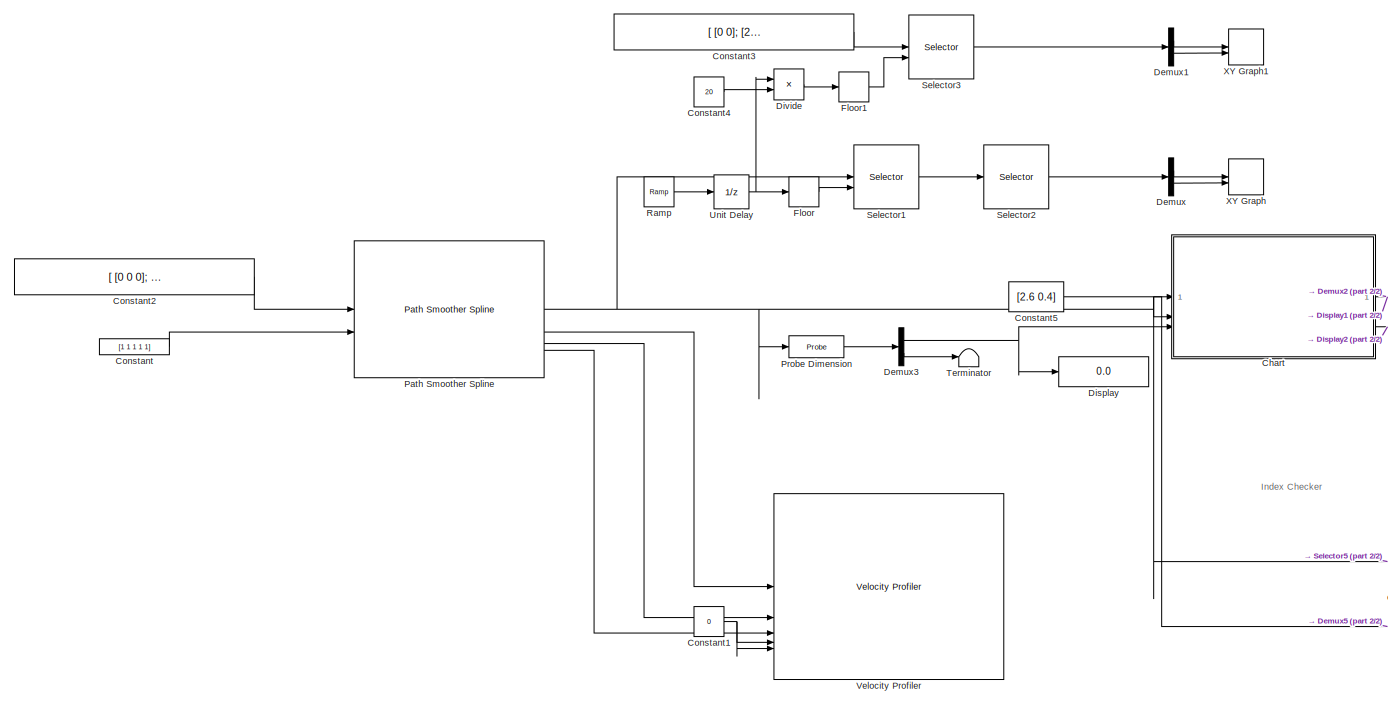
[diagram: root canvas - part 1/2, left side, full height]
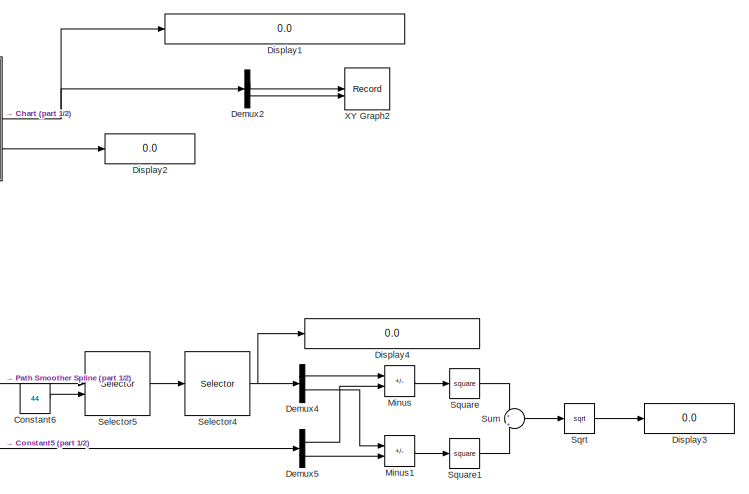
[diagram: root canvas - part 2/2, middle right region]
MODEL slx_e1f2869dee42
KIND model
CONFIG AbsTol = auto
CONFIG EnableMultiTasking = off
CONFIG FixedStep = .02
CONFIG MaxStep = auto
CONFIG MinStep = auto
CONFIG RelTol = 1e-3
CONFIG SampleTimeConstraint = Unconstrained
CONFIG SolverName = FixedStepDiscrete
CONFIG StartTime = 0.0
CONFIG StopTime = 100
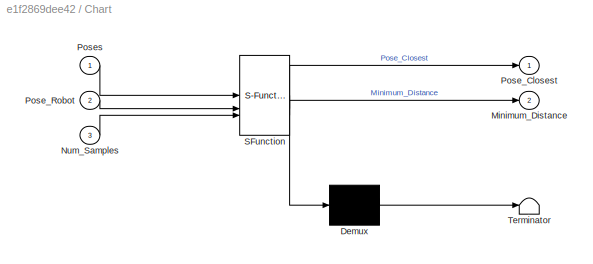
BLOCK [SubSystem] Chart
  ErrorFcn = Stateflow.Translate.translate
  PermitHierarchicalResolution = ExplicitOnly
  SFBlockType = Chart
  TreatAsAtomicUnit = on
BLOCK [Demux] Chart/ Demux 
  Outputs = 1
BLOCK [S-Function] Chart/ SFunction 
  EnableBusSupport = on
  FunctionName = sf_sfun
  PortCounts = [3 3]
  SFcnIsStateOwnerBlock = off
  SFunctionDeploymentMode = off
  Tag = Stateflow S-Function 3
BLOCK [Terminator] Chart/ Terminator 
BLOCK [Outport] Chart/Minimum_Distance
  Port = 2
BLOCK [Inport] Chart/Num_Samples
  Port = 3
BLOCK [Outport] Chart/Pose_Closest
BLOCK [Inport] Chart/Pose_Robot
  Port = 2
BLOCK [Inport] Chart/Poses
BLOCK [Constant] Constant
  Value = [1 1 1 1 1]
BLOCK [Constant] Constant1
  Value = 0
BLOCK [Constant] Constant2
  Value = [ [0 0 0]; [2 0 0]; [3 1 90]; [4 0 -90]; [3 -1 180] ]
BLOCK [Constant] Constant3
  Commented = on
  Value = [ [0 0]; [2 0]; [3 1]; [4 0]; [3 -1] ]
BLOCK [Constant] Constant4
  Commented = on
  Value = 20
BLOCK [Constant] Constant5
  Value = [2.6 0.4]
BLOCK [Constant] Constant6
  Commented = on
  Value = 44
BLOCK [Demux] Demux
  Outputs = 2
BLOCK [Demux] Demux1
  Commented = on
  Outputs = 2
BLOCK [Demux] Demux2
  Outputs = 2
BLOCK [Demux] Demux3
  Outputs = 2
BLOCK [Demux] Demux4
  Commented = on
  Outputs = 2
BLOCK [Demux] Demux5
  Commented = on
  Outputs = 2
BLOCK [Display] Display
  Decimation = 1
BLOCK [Display] Display1
  Decimation = 1
BLOCK [Display] Display2
  Decimation = 1
BLOCK [Display] Display3
  Commented = on
  Decimation = 1
BLOCK [Display] Display4
  Commented = on
  Decimation = 1
BLOCK [Product] Divide
  Commented = on
  Inputs = */
BLOCK [Rounding] Floor
BLOCK [Rounding] Floor1
  Commented = on
BLOCK [Sum] Minus
  Commented = on
  IconShape = rectangular
  Inputs = +-
BLOCK [Sum] Minus1
  Commented = on
  IconShape = rectangular
  Inputs = +-
BLOCK [Reference] Path Smoother Spline  REF=drivinglib/Path Smoother Spline
  SourceBlock = drivinglib/Path Smoother Spline
  SourceType = driving.internal.planning.PathSmootherSpline
BLOCK [Probe] Probe Dimension
  ProbeComplexSignal = off
  ProbeSampleTime = off
  ProbeSignalDimensions = on
  ProbeWidth = off
BLOCK [Reference] Ramp  REF=simulink/Sources/Ramp
  SourceBlock = simulink/Sources/Ramp
  SourceType = Ramp
BLOCK [Selector] Selector1
  IndexMode = Zero-based
  IndexOptions = Index vector (port),Select all
  Indices = [1 3],1
  InputPortWidth = 3
  NumberOfDimensions = 2
  OutputSizes = 1,1
BLOCK [Selector] Selector2
  IndexMode = Zero-based
  IndexOptions = Index vector (dialog)
  Indices = [0 1]
  InputPortWidth = 3
  OutputSizes = 1
BLOCK [Selector] Selector3
  Commented = on
  IndexMode = Zero-based
  IndexOptions = Index vector (port),Select all
  Indices = [1 3],1
  InputPortWidth = 3
  NumberOfDimensions = 2
  OutputSizes = 1,1
BLOCK [Selector] Selector4
  Commented = on
  IndexMode = Zero-based
  IndexOptions = Index vector (dialog)
  Indices = [0 1]
  InputPortWidth = 3
  OutputSizes = 1
BLOCK [Selector] Selector5
  Commented = on
  IndexMode = Zero-based
  IndexOptions = Index vector (port),Select all
  Indices = [1 3],1
  InputPortWidth = 3
  NumberOfDimensions = 2
  OutputSizes = 1,1
BLOCK [Sqrt] Sqrt
  Commented = on
BLOCK [Math] Square
  Commented = on
  Operator = square
BLOCK [Math] Square1
  Commented = on
  Operator = square
BLOCK [Sum] Sum
  Commented = on
  Inputs = +|+
BLOCK [Terminator] Terminator
BLOCK [UnitDelay] Unit Delay
  HasFrameUpgradeWarning = on
  SampleTime = -1
BLOCK [Reference] Velocity Profiler  REF=drivinglib/Velocity Profiler
  SourceBlock = drivinglib/Velocity Profiler
  SourceType = driving.internal.planning.VelocityProfiler
BLOCK [Record] XY Graph
  CompatibilityTag = XY
  FileSettingsInternal = {"entries":[{"content":{"excelSettings":{"content":{},"type":"Streamout.ExcelSettings"}},"type":"Streamout.FileSettingStorage","uuid":""}],"packageUris":["http:\/\/schema.mathworks.com\/mf0\/streamout_blocks\/R2020a"],"version":"1.0"}  <repeated x3 — deduplicated; at blocks: XY Graph, XY Graph1, XY Graph2>
  Layout = [1 1]
  SignalsInternal = {"entries":[{"content":{"signals":[{"content":{"blockPath":[],"dimensions":[1,1],"domain":"","lineColor":"#a2142f","plots":[1],"port":1,"sid":[""],"signalID":331,"signalName":"Demux:1"},"type":"RecordBlkView.Signal","uuid":""},{"content":{"blockPath":[],"dimensions":[1,1],"domain":"","lineColor":"#139fff","plots":[1],"port":2,"sid":[""],"signalID":335,"signalName":"Demux:2"},"type":"RecordBlkView....<+164ch>
  VisualizationBindings = {"xyplotplugin":{"info":[{"series":[{"bindingParametersList":[{"parameter":"X-Axis","signalID":331,"signalName":"Demux:1"},{"parameter":"Y-Axis","signalID":335,"signalName":"Demux:2"}],"seriesID":11827}],"subplotID":1}]}}
BLOCK [Record] XY Graph1
  Commented = on
  CompatibilityTag = XY
  Layout = [1 1]
  SignalsInternal = {"entries":[{"content":{},"type":"RecordBlkView.InputSignals","uuid":""}],"packageUris":["http:\/\/schema.mathworks.com\/mf0\/streamout_blocks\/R2020a"],"version":"1.0"}
  VisualizationBindings = {"sparklinesplugin":{"info":[{"bindingParametersList":[],"subplotID":1}]}}
BLOCK [Record] XY Graph2
  CompatibilityTag = XY
  Layout = [1 1]
  SignalsInternal = {"entries":[{"content":{"signals":[{"content":{"blockPath":[],"dimensions":[1,1],"domain":"","lineColor":"#a2142f","plots":[1],"port":1,"sid":[""],"signalID":339,"signalName":"Demux2:1"},"type":"RecordBlkView.Signal","uuid":""},{"content":{"blockPath":[],"dimensions":[1,1],"domain":"","lineColor":"#139fff","plots":[1],"port":2,"sid":[""],"signalID":343,"signalName":"Demux2:2"},"type":"RecordBlkVie...<+166ch>
  VisualizationBindings = {"xyplotplugin":{"info":[{"series":[{"bindingParametersList":[{"parameter":"X-Axis","signalID":339,"signalName":"Demux2:1"},{"parameter":"Y-Axis","signalID":343,"signalName":"Demux2:2"}],"seriesID":61170}],"subplotID":1}]}}
ANNOTATION (root): Index Checker
NET Chart:1 -> Demux2:1, Display1:1
LINE Chart:2 -> Display2:1
NET Constant1:1 -> Velocity Profiler:4, Velocity Profiler:5
LINE Constant2:1 -> Path Smoother Spline:1
LINE Constant3:1 -> Selector3:1
LINE Constant4:1 -> Divide:2
NET Constant5:1 -> Chart:2, Demux5:1
LINE Constant6:1 -> Selector5:2
LINE Constant:1 -> Path Smoother Spline:2
LINE Demux1:1 -> XY Graph1:1
LINE Demux1:2 -> XY Graph1:2
LINE Demux2:1 -> XY Graph2:1
LINE Demux2:2 -> XY Graph2:2
NET Demux3:1 -> Chart:3, Display:1
LINE Demux3:2 -> Terminator:1
LINE Demux4:1 -> Minus:1
LINE Demux4:2 -> Minus1:1
LINE Demux5:1 -> Minus:2
LINE Demux5:2 -> Minus1:2
LINE Demux:1 -> XY Graph:1
LINE Demux:2 -> XY Graph:2
LINE Divide:1 -> Floor1:1
LINE Floor1:1 -> Selector3:2
LINE Floor:1 -> Selector1:2
LINE Minus1:1 -> Square1:1
LINE Minus:1 -> Square:1
NET Path Smoother Spline:1 -> Chart:1, Probe Dimension:1, Selector1:1, Selector5:1
LINE Path Smoother Spline:2 -> Velocity Profiler:1
LINE Path Smoother Spline:3 -> Velocity Profiler:2
LINE Path Smoother Spline:4 -> Velocity Profiler:3
LINE Probe Dimension:1 -> Demux3:1
LINE Ramp:1 -> Unit Delay:1
LINE Selector1:1 -> Selector2:1
LINE Selector2:1 -> Demux:1
LINE Selector3:1 -> Demux1:1
NET Selector4:1 -> Demux4:1, Display4:1
LINE Selector5:1 -> Selector4:1
LINE Sqrt:1 -> Display3:1
LINE Square1:1 -> Sum:2
LINE Square:1 -> Sum:1
LINE Sum:1 -> Sqrt:1
NET Unit Delay:1 -> Divide:1, Floor:1
note: NET lines group one-source signal fan-out (src -> all destinations, sorted); 1:1 wires keep LINE
CHART Chart states=0 transitions=10
CHART  states=0 transitions=0
